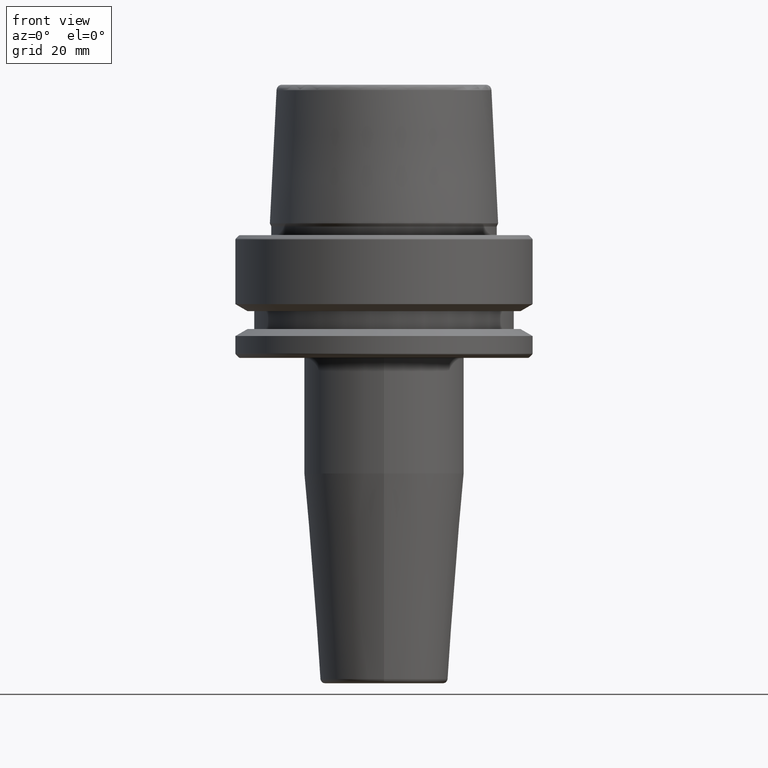
[diagram: clean part render]
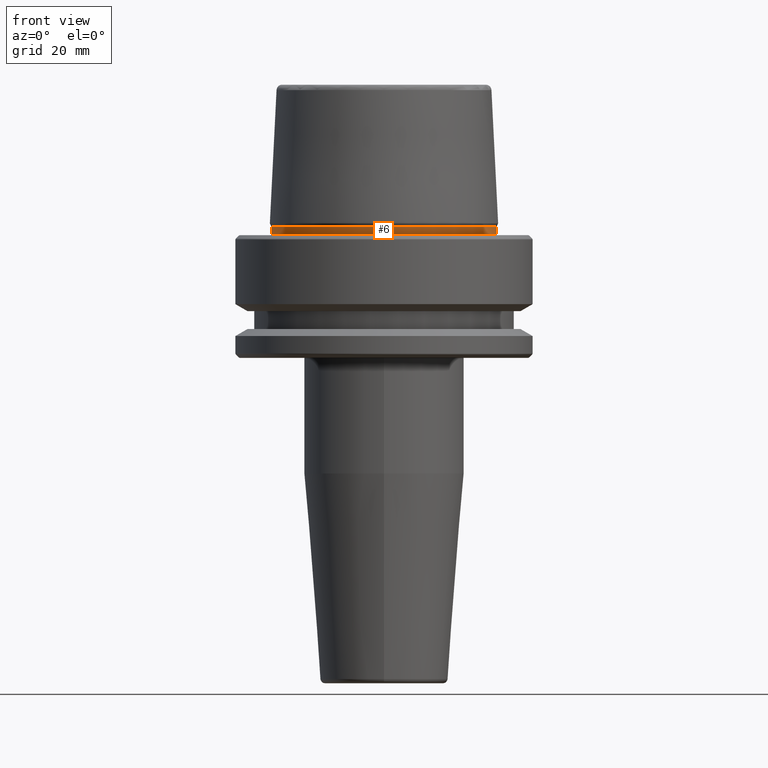
[diagram: same view with one face highlighted and labeled with its STEP entity id]
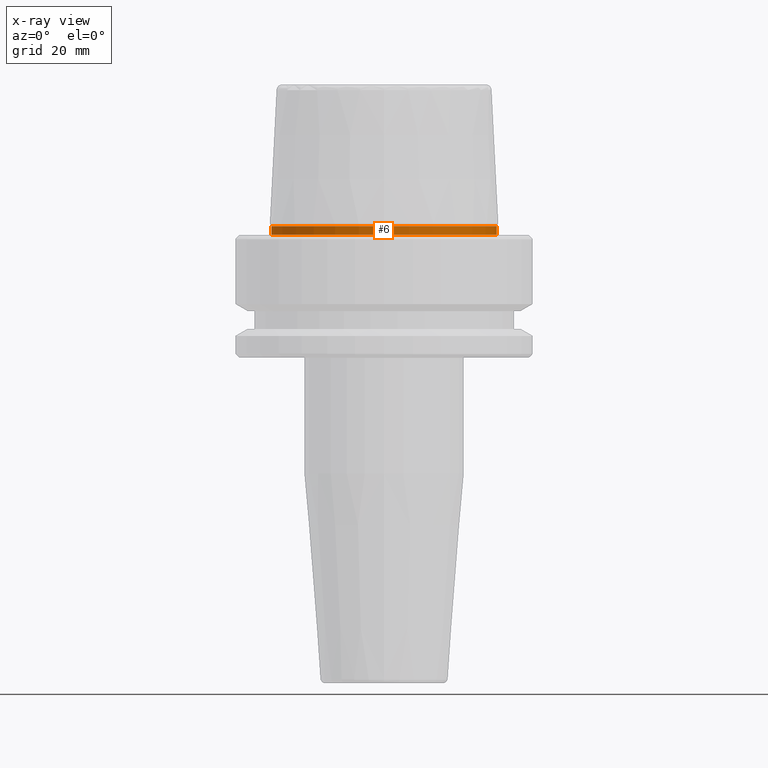
[diagram: x-ray of the same camera — body ghosted, the highlighted face saturated]
A machine part, front view. The second image highlights one B-rep face of the part: STEP entity #6.
The next image is the same camera in x-ray: the body ghosted, the highlighted face saturated — about 0% of this face is hidden behind the body in this view.
In plain terms, the highlighted cylindrical surface (partial cylindrical patch) has radius 23.89 mm, axis along (-0, -0, 1).
Its self-contained STEP definition (entity closure, byte-faithful):
#6 = ADVANCED_FACE ( 'NONE', ( #584 ), #608, .T. ) ;
#33 = ORIENTED_EDGE ( 'NONE', *, *, #963, .F. ) ;
#36 = CARTESIAN_POINT ( 'NONE',  ( -23.89000000000000100, 2.944380070784114200E-015, 1.845119734979375100 ) ) ;
#42 = ORIENTED_EDGE ( 'NONE', *, *, #593, .T. ) ;
#49 = ORIENTED_EDGE ( 'NONE', *, *, #504, .T. ) ;
#57 = AXIS2_PLACEMENT_3D ( 'NONE', #412, #1059, #518 ) ;
#125 = DIRECTION ( 'NONE',  ( 1.000000000000000000, 0.0000000000000000000, 0.0000000000000000000 ) ) ;
#201 = CARTESIAN_POINT ( 'NONE',  ( -23.89000000000000100, 2.925681203163027000E-015, 78.96908074195309300 ) ) ;
#289 = CIRCLE ( 'NONE', #57, 23.89000000000000100 ) ;
#324 = CIRCLE ( 'NONE', #888, 23.89000000000000400 ) ;
#355 = DIRECTION ( 'NONE',  ( -0.0000000000000000000, -0.0000000000000000000, 1.000000000000000000 ) ) ;
#357 = LINE ( 'NONE', #201, #716 ) ;
#371 = EDGE_CURVE ( 'NONE', #592, #744, #357, .T. ) ;
#412 = CARTESIAN_POINT ( 'NONE',  ( 0.0000000000000000000, 0.0000000000000000000, 1.845119734979375100 ) ) ;
#504 = EDGE_CURVE ( 'NONE', #592, #1246, #324, .T. ) ;
#518 = DIRECTION ( 'NONE',  ( 1.000000000000000000, 0.0000000000000000000, 0.0000000000000000000 ) ) ;
#523 = CARTESIAN_POINT ( 'NONE',  ( 23.89000000000000100, 0.0000000000000000000, 1.845119734979375100 ) ) ;
#555 = CARTESIAN_POINT ( 'NONE',  ( -23.89000000000000400, 2.961613815265650600E-015, 0.1312552021302954000 ) ) ;
#584 = FACE_OUTER_BOUND ( 'NONE', #1257, .T. ) ;
#592 = VERTEX_POINT ( 'NONE', #555 ) ;
#593 = EDGE_CURVE ( 'NONE', #1246, #1148, #1041, .T. ) ;
#608 = CYLINDRICAL_SURFACE ( 'NONE', #974, 23.89000000000000100 ) ;
#706 = ORIENTED_EDGE ( 'NONE', *, *, #371, .F. ) ;
#716 = VECTOR ( 'NONE', #901, 1000.000000000000000 ) ;
#739 = CARTESIAN_POINT ( 'NONE',  ( 23.89000000000000100, 0.0000000000000000000, 78.96908074195309300 ) ) ;
#744 = VERTEX_POINT ( 'NONE', #36 ) ;
#888 = AXIS2_PLACEMENT_3D ( 'NONE', #943, #355, #1015 ) ;
#901 = DIRECTION ( 'NONE',  ( -0.0000000000000000000, -0.0000000000000000000, 1.000000000000000000 ) ) ;
#941 = CARTESIAN_POINT ( 'NONE',  ( 0.0000000000000000000, 0.0000000000000000000, 78.96908074195309300 ) ) ;
#943 = CARTESIAN_POINT ( 'NONE',  ( 0.0000000000000000000, 0.0000000000000000000, 0.1312552021302954000 ) ) ;
#963 = EDGE_CURVE ( 'NONE', #744, #1148, #289, .T. ) ;
#974 = AXIS2_PLACEMENT_3D ( 'NONE', #941, #1062, #125 ) ;
#1015 = DIRECTION ( 'NONE',  ( 1.000000000000000000, 0.0000000000000000000, 0.0000000000000000000 ) ) ;
#1041 = LINE ( 'NONE', #739, #1089 ) ;
#1059 = DIRECTION ( 'NONE',  ( -0.0000000000000000000, -0.0000000000000000000, 1.000000000000000000 ) ) ;
#1062 = DIRECTION ( 'NONE',  ( -0.0000000000000000000, -0.0000000000000000000, 1.000000000000000000 ) ) ;
#1089 = VECTOR ( 'NONE', #1212, 1000.000000000000000 ) ;
#1148 = VERTEX_POINT ( 'NONE', #523 ) ;
#1196 = CARTESIAN_POINT ( 'NONE',  ( 23.89000000000000400, 0.0000000000000000000, 0.1312552021302954000 ) ) ;
#1212 = DIRECTION ( 'NONE',  ( -0.0000000000000000000, -0.0000000000000000000, 1.000000000000000000 ) ) ;
#1246 = VERTEX_POINT ( 'NONE', #1196 ) ;
#1257 = EDGE_LOOP ( 'NONE', ( #706, #49, #42, #33 ) ) ;